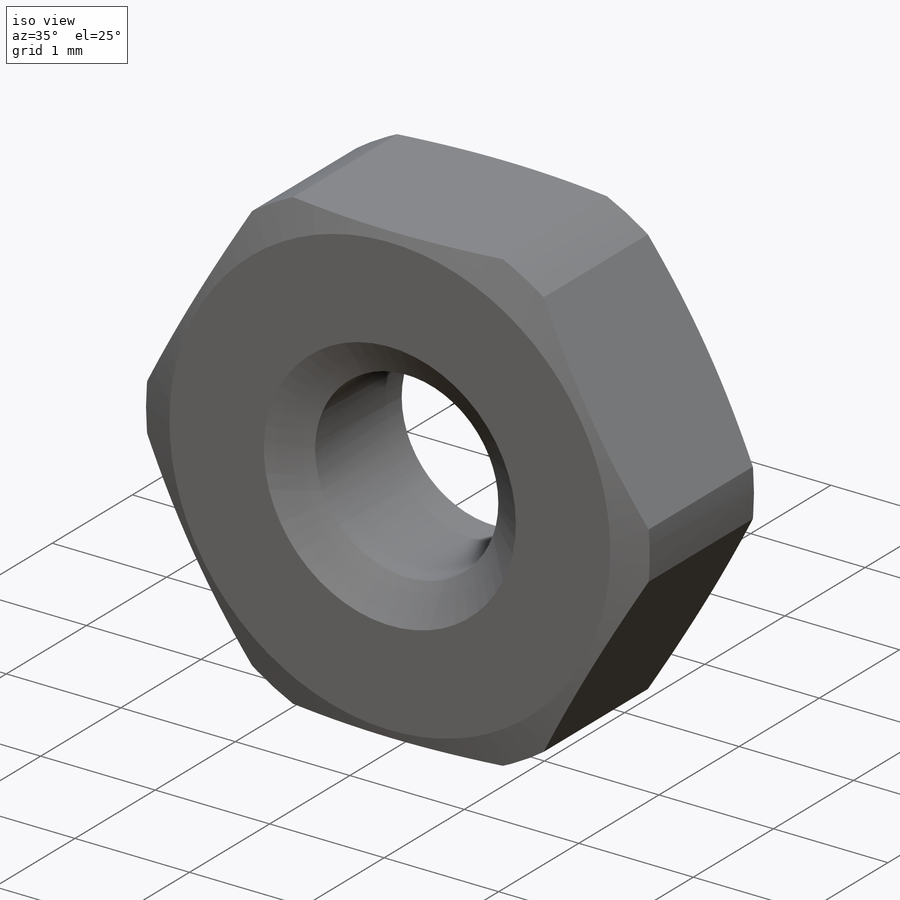
[diagram: iso view]
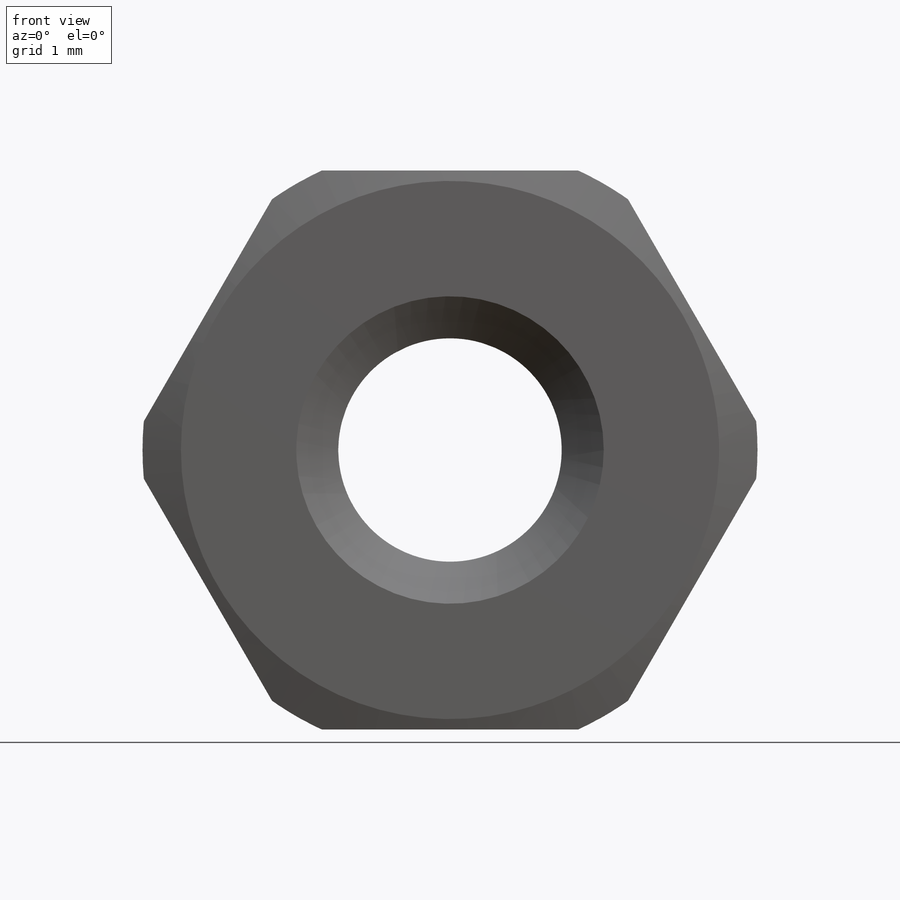
[diagram: front view]
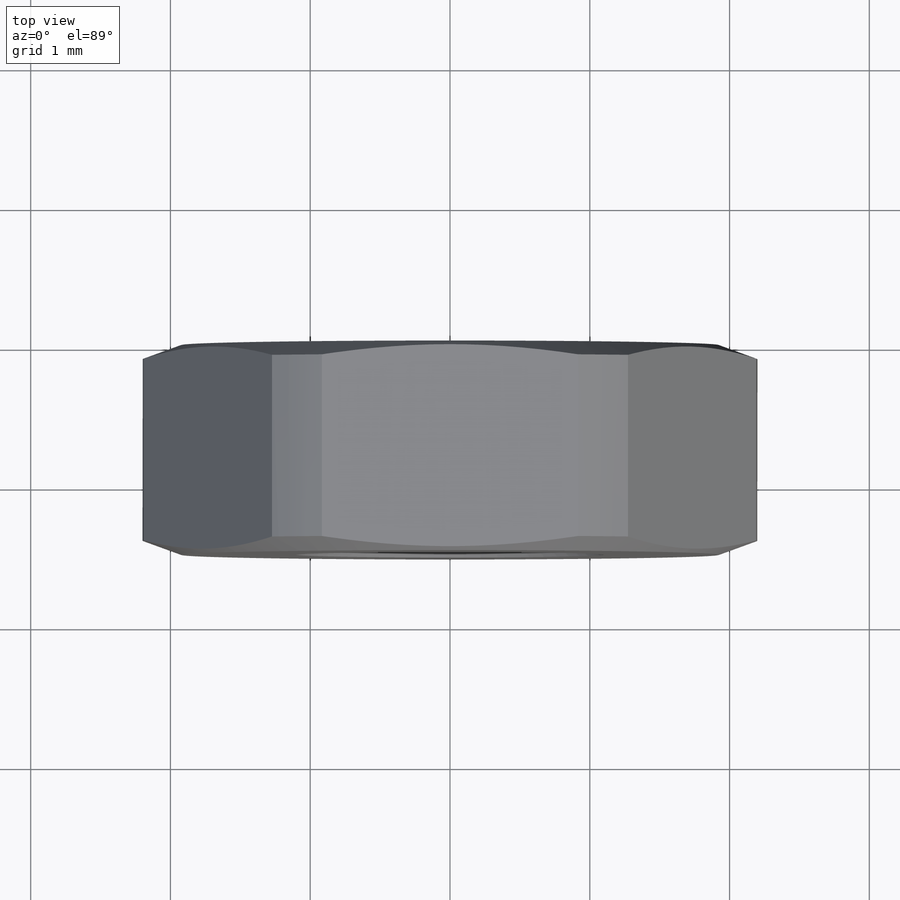
[diagram: top view]
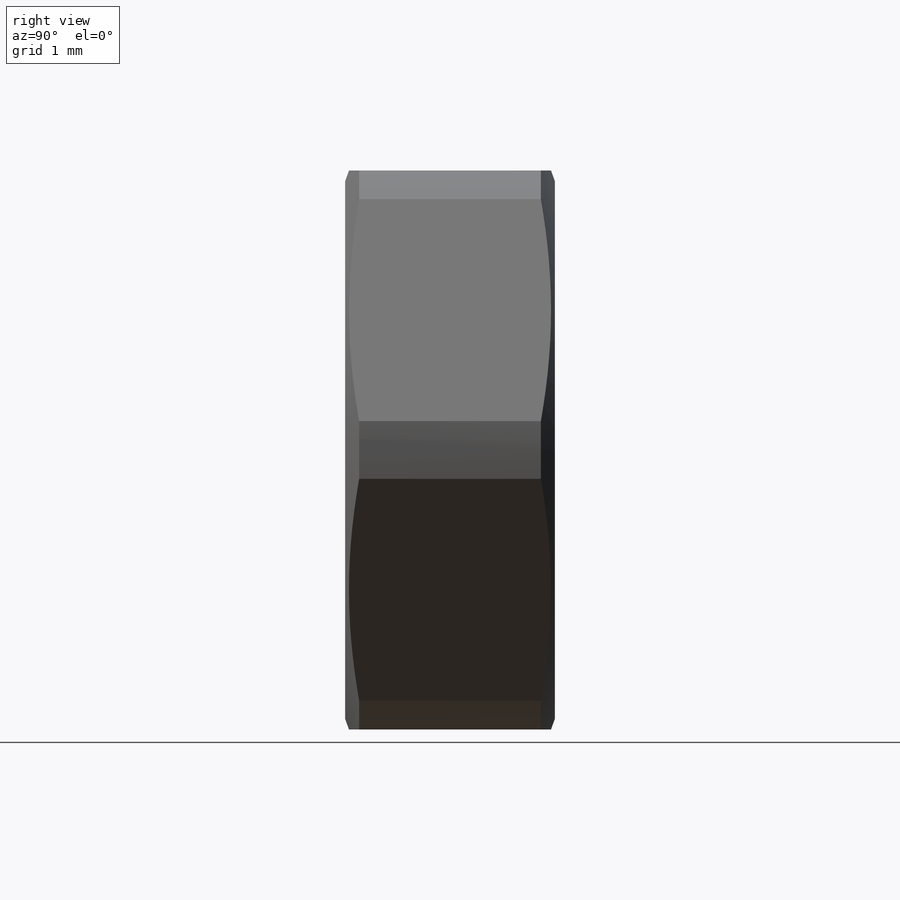
[diagram: right view]
SOLIDWORKS PART (.sldprt)
format: sldprt  version: not decoded by parser v0  size: 246,784 bytes
history: native  units: mm
features: sketch x4, plane x3, material x1, extrude x1, thread x1, cut_revolve x1, hole x1 (+13 scaffold rows collapsed)
feature tree (25):
  scaffold x13  (default folders/planes/origin — collapsed)
  material  "Материал <не указан>"
  plane  "Спереди"
  plane  "Сверху"
  plane  "Справа"
  sketch  "Эскиз1"  dims[D1=4.0mm D2=1.6mm]
  extrude  "Бобышка-Вытянуть1"  [1 undecoded]
  thread  "Отверстие резьбы1"  Diameter=2mm  [1 undecoded]
  sketch  "Эскиз2"  dims[c1.D1=4.4mm c1.D2=0.15mm c1.D3=0.1mm c1.D4=~0.376961mm c2.D4=20.0deg]
  cut_revolve  "Вырез-Повернуть1"  Angle=360deg
  hole  "Отверстие обработанное метчиком M2x0.41"  [1 undecoded]
  sketch  "Эскиз4"
  sketch  "Эскиз3"  dims[hole-wizard template sketch: 47 standard entries collapsed; hole parameters kept: c15.Глубина проходного сверла=1.5mm c15.Диаметр передней зенковки=2.2mm c15.D4=~3.666174mm c15.Угол передней зенковки=110.0deg c15.Диаметр задней зенковки=2.2mm c15.D6=~9.919017mm c15.Угол задней зенковки=110.0deg]
decode coverage: 5 of 8 modeling features carry decoded parameters
note: ~ marks probable driven/reference dimensions
note: 3 parameter values undecoded
note: suppression state not decoded; provenance and decode notes live in map.json
